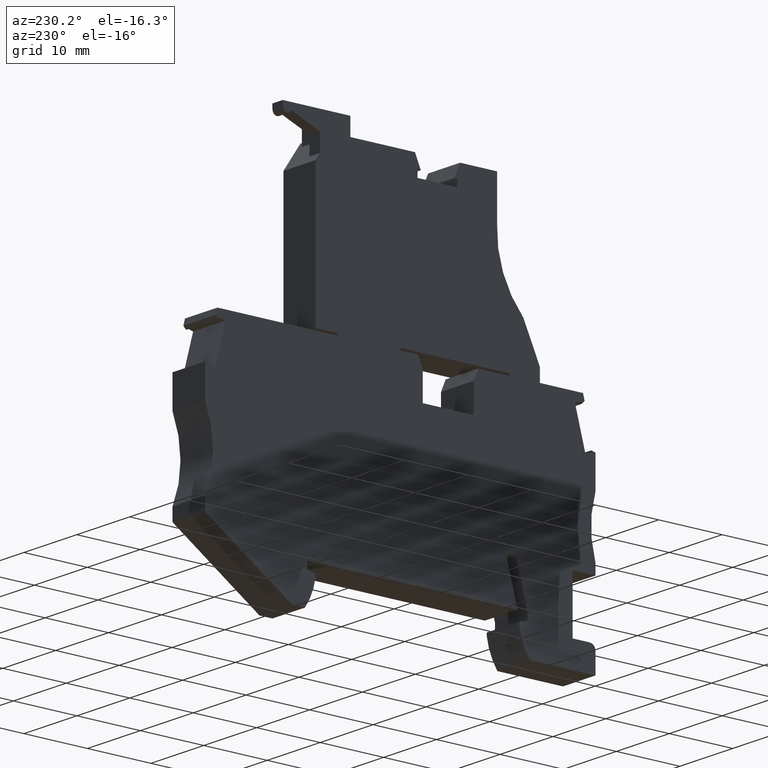
[diagram: clean part render]
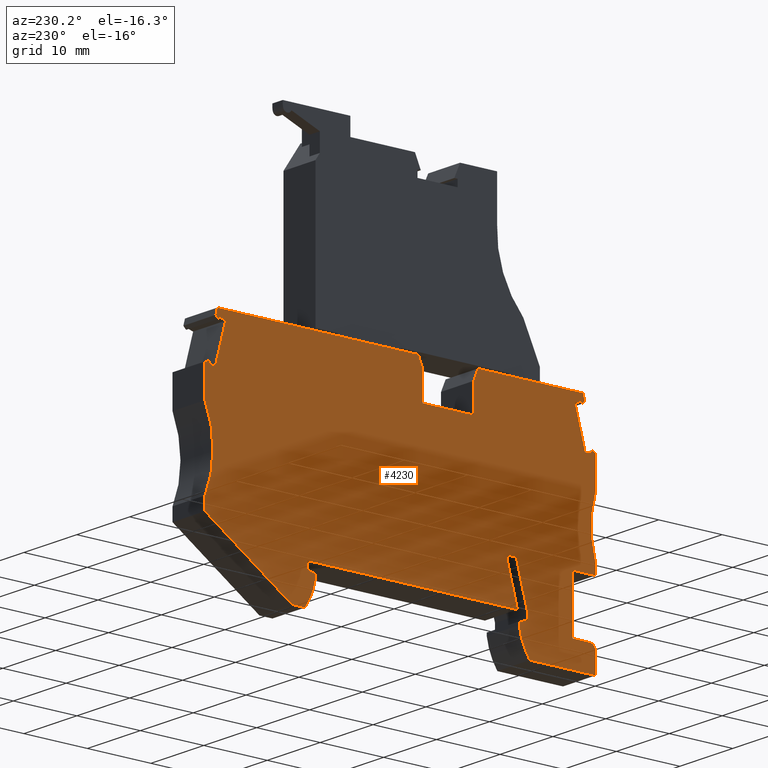
[diagram: same view with one face highlighted and labeled with its STEP entity id]
A machine part, auxiliary view. The second image highlights one B-rep face of the part: STEP entity #4230.
In plain terms, the highlighted planar face has unit normal (-1, 0, 0).
Its self-contained STEP definition (entity closure, byte-faithful):
#10=CARTESIAN_POINT('',(-37.377555528402,21.5329479692875,
-5.1499999965275));
#20=DIRECTION('',(0.,0.,-1.));
#30=DIRECTION('',(-1.,0.,0.));
#40=AXIS2_PLACEMENT_3D('',#10,#20,#30);
#50=PLANE('',#40);
#60=CARTESIAN_POINT('',(18.3854064788973,-6.67785114815199,
-5.1499999965275));
#70=DIRECTION('',(0.258819045102385,-0.965925826289105,0.));
#80=VECTOR('',#70,1.);
#90=LINE('',#60,#80);
#100=CARTESIAN_POINT('',(11.7950480447559,17.9177013681674,
-5.1499999965275));
#110=VERTEX_POINT('',#100);
#120=CARTESIAN_POINT('',(11.8654484799115,17.6549633672917,
-5.1499999965275));
#130=VERTEX_POINT('',#120);
#140=EDGE_CURVE('',#110,#130,#90,.T.);
#150=ORIENTED_EDGE('',*,*,#140,.F.);
#160=CARTESIAN_POINT('',(-17.2402011528858,-11.450686265427,
-5.1499999965275));
#170=DIRECTION('',(0.707106781187503,0.707106781185593,0.));
#180=VECTOR('',#170,1.);
#190=LINE('',#160,#180);
#200=CARTESIAN_POINT('',(12.2977656682969,18.087280555676,
-5.1499999965275));
#210=VERTEX_POINT('',#200);
#220=EDGE_CURVE('',#130,#210,#190,.T.);
#230=ORIENTED_EDGE('',*,*,#220,.F.);
#240=CARTESIAN_POINT('',(18.9335627087992,-6.67785114815208,
-5.1499999965275));
#250=DIRECTION('',(0.258819045102926,-0.96592582628896,0.));
#260=VECTOR('',#250,1.);
#270=LINE('',#240,#260);
#280=CARTESIAN_POINT('',(12.0398057706521,19.0500000000001,
-5.1499999965275));
#290=VERTEX_POINT('',#280);
#300=EDGE_CURVE('',#290,#210,#270,.T.);
#310=ORIENTED_EDGE('',*,*,#300,.T.);
#320=CARTESIAN_POINT('',(-17.2402011528858,19.0500000000001,
-5.1499999965275));
#330=DIRECTION('',(-1.,0.,0.));
#340=VECTOR('',#330,1.);
#350=LINE('',#320,#340);
#360=CARTESIAN_POINT('',(-19.5815002806931,19.0500000000001,
-5.1499999965275));
#370=VERTEX_POINT('',#360);
#380=EDGE_CURVE('',#290,#370,#350,.T.);
#390=ORIENTED_EDGE('',*,*,#380,.F.);
#400=CARTESIAN_POINT('',(-30.4552966502725,-6.67785114815208,
-5.1499999965275));
#410=DIRECTION('',(0.38930399709805,0.92110933001652,0.));
#420=VECTOR('',#410,1.);
#430=LINE('',#400,#420);
#440=CARTESIAN_POINT('',(-20.2999999999999,17.3499999999974,
-5.1499999965275));
#450=VERTEX_POINT('',#440);
#460=EDGE_CURVE('',#450,#370,#430,.T.);
#470=ORIENTED_EDGE('',*,*,#460,.T.);
#480=CARTESIAN_POINT('',(-20.2999999999998,-6.67785114815208,
-5.1499999965275));
#490=DIRECTION('',(-5.53723733531797E-15,1.,0.));
#500=VECTOR('',#490,1.);
#510=LINE('',#480,#500);
#520=CARTESIAN_POINT('',(-20.2999999999999,13.0499999999976,
-5.1499999965275));
#530=VERTEX_POINT('',#520);
#540=EDGE_CURVE('',#530,#450,#510,.T.);
#550=ORIENTED_EDGE('',*,*,#540,.T.);
#560=CARTESIAN_POINT('',(-17.2402011528858,13.0499999999972,
-5.1499999965275));
#570=DIRECTION('',(1.,-1.15518705712248E-13,0.));
#580=VECTOR('',#570,1.);
#590=LINE('',#560,#580);
#600=CARTESIAN_POINT('',(-28.2999999999997,13.0499999999985,
-5.1499999965275));
#610=VERTEX_POINT('',#600);
#620=EDGE_CURVE('',#610,#530,#590,.T.);
#630=ORIENTED_EDGE('',*,*,#620,.T.);
#640=CARTESIAN_POINT('',(-28.2999999999996,-6.67785114815208,
-5.1499999965275));
#650=DIRECTION('',(2.76167977375508E-15,-1.,0.));
#660=VECTOR('',#650,1.);
#670=LINE('',#640,#660);
#680=CARTESIAN_POINT('',(-28.2999999999997,17.3500000000018,
-5.1499999965275));
#690=VERTEX_POINT('',#680);
#700=EDGE_CURVE('',#690,#610,#670,.T.);
#710=ORIENTED_EDGE('',*,*,#700,.T.);
#720=CARTESIAN_POINT('',(-18.1447033497253,-6.67785114815208,
-5.1499999965275));
#730=DIRECTION('',(0.38930399709805,-0.92110933001652,0.));
#740=VECTOR('',#730,1.);
#750=LINE('',#720,#740);
#760=CARTESIAN_POINT('',(-29.0184997193085,19.0500000000092,
-5.1499999965275));
#770=VERTEX_POINT('',#760);
#780=EDGE_CURVE('',#770,#690,#750,.T.);
#790=ORIENTED_EDGE('',*,*,#780,.T.);
#800=CARTESIAN_POINT('',(-17.2402011528858,19.0500000000001,
-5.1499999965275));
#810=DIRECTION('',(-1.,0.,0.));
#820=VECTOR('',#810,1.);
#830=LINE('',#800,#820);
#840=CARTESIAN_POINT('',(-45.539805770653,19.0499999999983,
-5.1499999965275));
#850=VERTEX_POINT('',#840);
#860=EDGE_CURVE('',#770,#850,#830,.T.);
#870=ORIENTED_EDGE('',*,*,#860,.F.);
#880=CARTESIAN_POINT('',(-52.4335627088001,-6.67785114815208,
-5.1499999965275));
#890=DIRECTION('',(0.258819045102926,0.96592582628896,0.));
#900=VECTOR('',#890,1.);
#910=LINE('',#880,#900);
#920=CARTESIAN_POINT('',(-45.7977656682978,18.087280555676,
-5.1499999965275));
#930=VERTEX_POINT('',#920);
#940=EDGE_CURVE('',#930,#850,#910,.T.);
#950=ORIENTED_EDGE('',*,*,#940,.T.);
#960=CARTESIAN_POINT('',(-17.2402011528858,-10.4702839596589,
-5.1499999965275));
#970=DIRECTION('',(-0.707106781187503,0.707106781185593,0.));
#980=VECTOR('',#970,1.);
#990=LINE('',#960,#980);
#1000=CARTESIAN_POINT('',(-45.3654484799123,17.6549633672917,
-5.1499999965275));
#1010=VERTEX_POINT('',#1000);
#1020=EDGE_CURVE('',#1010,#930,#990,.T.);
#1030=ORIENTED_EDGE('',*,*,#1020,.T.);
#1040=CARTESIAN_POINT('',(-51.8854064788985,-6.67785114815199,
-5.1499999965275));
#1050=DIRECTION('',(-0.2588190451024,-0.965925826289101,0.));
#1060=VECTOR('',#1050,1.);
#1070=LINE('',#1040,#1060);
#1080=CARTESIAN_POINT('',(-45.2950480447567,17.9177013681674,
-5.1499999965275));
#1090=VERTEX_POINT('',#1080);
#1100=EDGE_CURVE('',#1090,#1010,#1070,.T.);
#1110=ORIENTED_EDGE('',*,*,#1100,.T.);
#1120=CARTESIAN_POINT('',(-17.2402011528858,10.4004277997157,
-5.1499999965275));
#1130=DIRECTION('',(-0.965925826289102,0.258819045102394,0.));
#1140=VECTOR('',#1130,1.);
#1150=LINE('',#1120,#1140);
#1160=CARTESIAN_POINT('',(-44.2610034477991,17.640629953475,
-5.1499999965275));
#1170=VERTEX_POINT('',#1160);
#1180=EDGE_CURVE('',#1170,#1090,#1150,.T.);
#1190=ORIENTED_EDGE('',*,*,#1180,.T.);
#1200=CARTESIAN_POINT('',(-50.7771208201366,-6.67785114815208,
-5.1499999965275));
#1210=DIRECTION('',(0.258819045102705,0.965925826289019,0.));
#1220=VECTOR('',#1210,1.);
#1230=LINE('',#1200,#1220);
#1240=CARTESIAN_POINT('',(-45.8980339080737,11.5311491021972,
-5.1499999965275));
#1250=VERTEX_POINT('',#1240);
#1260=EDGE_CURVE('',#1250,#1170,#1230,.T.);
#1270=ORIENTED_EDGE('',*,*,#1260,.T.);
#1280=CARTESIAN_POINT('',(-17.2402011528858,3.85230595863084,
-5.1499999965275));
#1290=DIRECTION('',(0.965925826289173,-0.25881904510213,0.));
#1300=VECTOR('',#1290,1.);
#1310=LINE('',#1280,#1300);
#1320=CARTESIAN_POINT('',(-46.9320785050304,11.8082205168891,
-5.1499999965275));
#1330=VERTEX_POINT('',#1320);
#1340=EDGE_CURVE('',#1330,#1250,#1310,.T.);
#1350=ORIENTED_EDGE('',*,*,#1340,.T.);
#1360=CARTESIAN_POINT('',(-51.8854064790759,-6.67785114815199,
-5.1499999965275));
#1370=DIRECTION('',(-0.258819045110997,-0.965925826286797,0.));
#1380=VECTOR('',#1370,1.);
#1390=LINE('',#1360,#1380);
#1400=CARTESIAN_POINT('',(-46.8616780698729,12.0709585177625,
-5.1499999965275));
#1410=VERTEX_POINT('',#1400);
#1420=EDGE_CURVE('',#1410,#1330,#1390,.T.);
#1430=ORIENTED_EDGE('',*,*,#1420,.T.);
#1440=CARTESIAN_POINT('',(-17.2402011528858,20.008009336057,
-5.1499999965275));
#1450=DIRECTION('',(0.965925826290939,0.25881904509554,0.));
#1460=VECTOR('',#1450,1.);
#1470=LINE('',#1440,#1460);
#1480=CARTESIAN_POINT('',(-47.4999999999999,11.8999206720789,
-5.1499999965275));
#1490=VERTEX_POINT('',#1480);
#1500=EDGE_CURVE('',#1490,#1410,#1470,.T.);
#1510=ORIENTED_EDGE('',*,*,#1500,.T.);
#1520=CARTESIAN_POINT('',(-47.4999999999999,-6.67785114815208,
-5.1499999965275));
#1530=DIRECTION('',(0.,1.,0.));
#1540=VECTOR('',#1530,1.);
#1550=LINE('',#1520,#1540);
#1560=CARTESIAN_POINT('',(-47.4999999999999,6.9999999999986,
-5.1499999965275));
#1570=VERTEX_POINT('',#1560);
#1580=EDGE_CURVE('',#1570,#1490,#1550,.T.);
#1590=ORIENTED_EDGE('',*,*,#1580,.T.);
#1600=CARTESIAN_POINT('',(-61.8090880212543,2.49999999999859,
-5.1499999965275));
#1610=DIRECTION('',(0.,0.,1.));
#1620=DIRECTION('',(1.,0.,0.));
#1630=AXIS2_PLACEMENT_3D('',#1600,#1610,#1620);
#1640=CIRCLE('',#1630,15.0000000000002);
#1650=CARTESIAN_POINT('',(-47.4999999999999,-2.00000000000136,
-5.1499999965275));
#1660=VERTEX_POINT('',#1650);
#1670=EDGE_CURVE('',#1660,#1570,#1640,.T.);
#1680=ORIENTED_EDGE('',*,*,#1670,.T.);
#1690=CARTESIAN_POINT('',(-47.4999999999999,-6.67785114815208,
-5.1499999965275));
#1700=DIRECTION('',(0.,1.,0.));
#1710=VECTOR('',#1700,1.);
#1720=LINE('',#1690,#1710);
#1730=CARTESIAN_POINT('',(-47.4999999999999,-3.59999999999924,
-5.1499999965275));
#1740=VERTEX_POINT('',#1730);
#1750=EDGE_CURVE('',#1740,#1660,#1720,.T.);
#1760=ORIENTED_EDGE('',*,*,#1750,.T.);
#1770=CARTESIAN_POINT('',(-17.2402011528858,-3.59999999999924,
-5.1499999965275));
#1780=DIRECTION('',(-1.,0.,0.));
#1790=VECTOR('',#1780,1.);
#1800=LINE('',#1770,#1790);
#1810=CARTESIAN_POINT('',(-43.9,-3.59999999999924,-5.1499999965275));
#1820=VERTEX_POINT('',#1810);
#1830=EDGE_CURVE('',#1820,#1740,#1800,.T.);
#1840=ORIENTED_EDGE('',*,*,#1830,.T.);
#1850=CARTESIAN_POINT('',(-43.9,-6.67785114815208,-5.1499999965275));
#1860=DIRECTION('',(0.,-1.,0.));
#1870=VECTOR('',#1860,1.);
#1880=LINE('',#1850,#1870);
#1890=CARTESIAN_POINT('',(-43.9,-12.2000000000005,-5.1499999965275));
#1900=VERTEX_POINT('',#1890);
#1910=EDGE_CURVE('',#1820,#1900,#1880,.T.);
#1920=ORIENTED_EDGE('',*,*,#1910,.F.);
#1930=CARTESIAN_POINT('',(-17.2402011528858,-12.2000000000005,
-5.1499999965275));
#1940=DIRECTION('',(-1.,0.,0.));
#1950=VECTOR('',#1940,1.);
#1960=LINE('',#1930,#1950);
#1970=CARTESIAN_POINT('',(-46.6,-12.2000000000005,-5.1499999965275));
#1980=VERTEX_POINT('',#1970);
#1990=EDGE_CURVE('',#1900,#1980,#1960,.T.);
#2000=ORIENTED_EDGE('',*,*,#1990,.F.);
#2010=CARTESIAN_POINT('',(-46.6,-13.1000000000005,-5.1499999965275));
#2020=DIRECTION('',(0.,0.,1.));
#2030=DIRECTION('',(1.,0.,0.));
#2040=AXIS2_PLACEMENT_3D('',#2010,#2020,#2030);
#2050=CIRCLE('',#2040,0.9);
#2060=CARTESIAN_POINT('',(-47.5,-13.1000000000005,-5.1499999965275));
#2070=VERTEX_POINT('',#2060);
#2080=EDGE_CURVE('',#1980,#2070,#2050,.T.);
#2090=ORIENTED_EDGE('',*,*,#2080,.F.);
#2100=CARTESIAN_POINT('',(-47.5,-6.67785114815208,-5.1499999965275));
#2110=DIRECTION('',(0.,-1.,0.));
#2120=VECTOR('',#2110,1.);
#2130=LINE('',#2100,#2120);
#2140=CARTESIAN_POINT('',(-47.5,-16.2000000000003,-5.1499999965275));
#2150=VERTEX_POINT('',#2140);
#2160=EDGE_CURVE('',#2070,#2150,#2130,.T.);
#2170=ORIENTED_EDGE('',*,*,#2160,.F.);
#2180=CARTESIAN_POINT('',(-17.2402011528858,-16.1999999999992,
-5.1499999965275));
#2190=DIRECTION('',(1.,3.8219427622721E-14,0.));
#2200=VECTOR('',#2190,1.);
#2210=LINE('',#2180,#2200);
#2220=CARTESIAN_POINT('',(-37.1589436531324,-16.1999999999999,
-5.1499999965275));
#2230=VERTEX_POINT('',#2220);
#2240=EDGE_CURVE('',#2150,#2230,#2210,.T.);
#2250=ORIENTED_EDGE('',*,*,#2240,.F.);
#2260=CARTESIAN_POINT('',(-44.8939726793762,-10.6846282117025,
-5.1499999965275));
#2270=DIRECTION('',(-2.18952885050753E-47,0.,1.));
#2280=DIRECTION('',(1.,0.,2.18952885050753E-47));
#2290=AXIS2_PLACEMENT_3D('',#2260,#2270,#2280);
#2300=CIRCLE('',#2290,9.499999999999);
#2310=CARTESIAN_POINT('',(-35.4999999999998,-12.100000000001,
-5.1499999965275));
#2320=VERTEX_POINT('',#2310);
#2330=EDGE_CURVE('',#2230,#2320,#2300,.T.);
#2340=ORIENTED_EDGE('',*,*,#2330,.F.);
#2350=CARTESIAN_POINT('',(-35.5000000000001,-6.67785114815208,
-5.1499999965275));
#2360=DIRECTION('',(0.,1.,0.));
#2370=VECTOR('',#2360,1.);
#2380=LINE('',#2350,#2370);
#2390=CARTESIAN_POINT('',(-35.5000000000001,-11.6483339501604,
-5.1499999965275));
#2400=VERTEX_POINT('',#2390);
#2410=EDGE_CURVE('',#2320,#2400,#2380,.T.);
#2420=ORIENTED_EDGE('',*,*,#2410,.F.);
#2430=CARTESIAN_POINT('',(-17.2402011528858,-16.5410323052016,
-5.1499999965275));
#2440=DIRECTION('',(-0.96592582628904,0.258819045102626,0.));
#2450=VECTOR('',#2440,1.);
#2460=LINE('',#2430,#2450);
#2470=CARTESIAN_POINT('',(-36.7999999999994,-11.3,-5.1499999965275));
#2480=VERTEX_POINT('',#2470);
#2490=EDGE_CURVE('',#2400,#2480,#2460,.T.);
#2500=ORIENTED_EDGE('',*,*,#2490,.F.);
#2510=CARTESIAN_POINT('',(-36.7999999999994,-6.67785114815208,
-5.1499999965275));
#2520=DIRECTION('',(0.,1.,0.));
#2530=VECTOR('',#2520,1.);
#2540=LINE('',#2510,#2530);
#2550=CARTESIAN_POINT('',(-36.7999999999994,-10.1999999999807,
-5.1499999965275));
#2560=VERTEX_POINT('',#2550);
#2570=EDGE_CURVE('',#2480,#2560,#2540,.T.);
#2580=ORIENTED_EDGE('',*,*,#2570,.F.);
#2590=CARTESIAN_POINT('',(-35.8562430595272,-6.67785114815208,
-5.1499999965275));
#2600=DIRECTION('',(-0.258819045103168,-0.965925826288895,0.));
#2610=VECTOR('',#2600,1.);
#2620=LINE('',#2590,#2610);
#2630=CARTESIAN_POINT('',(-35.1308347491095,-3.97059047744793,
-5.1499999965275));
#2640=VERTEX_POINT('',#2630);
#2650=EDGE_CURVE('',#2640,#2560,#2620,.T.);
#2660=ORIENTED_EDGE('',*,*,#2650,.T.);
#2670=CARTESIAN_POINT('',(-34.647871835965,-4.09999999999952,
-5.1499999965275));
#2680=DIRECTION('',(0.,0.,-1.));
#2690=DIRECTION('',(-1.,0.,0.));
#2700=AXIS2_PLACEMENT_3D('',#2670,#2680,#2690);
#2710=CIRCLE('',#2700,0.5);
#2720=CARTESIAN_POINT('',(-34.647871835965,-3.59999999999952,
-5.1499999965275));
#2730=VERTEX_POINT('',#2720);
#2740=EDGE_CURVE('',#2640,#2730,#2710,.T.);
#2750=ORIENTED_EDGE('',*,*,#2740,.F.);
#2760=CARTESIAN_POINT('',(-17.2402011528858,-3.59999999999952,
-5.1499999965275));
#2770=DIRECTION('',(-1.,0.,0.));
#2780=VECTOR('',#2770,1.);
#2790=LINE('',#2760,#2780);
#2800=CARTESIAN_POINT('',(-34.0831480163721,-3.59999999999952,
-5.1499999965275));
#2810=VERTEX_POINT('',#2800);
#2820=EDGE_CURVE('',#2810,#2730,#2790,.T.);
#2830=ORIENTED_EDGE('',*,*,#2820,.T.);
#2840=CARTESIAN_POINT('',(-34.0831480163721,-4.09999999999952,
-5.1499999965275));
#2850=DIRECTION('',(0.,0.,-1.));
#2860=DIRECTION('',(-1.,0.,0.));
#2870=AXIS2_PLACEMENT_3D('',#2840,#2850,#2860);
#2880=CIRCLE('',#2870,0.5);
#2890=CARTESIAN_POINT('',(-33.6001851032276,-4.22940952255101,
-5.1499999965275));
#2900=VERTEX_POINT('',#2890);
#2910=EDGE_CURVE('',#2810,#2900,#2880,.T.);
#2920=ORIENTED_EDGE('',*,*,#2910,.F.);
#2930=CARTESIAN_POINT('',(-34.2562430595234,-6.67785114815208,
-5.1499999965275));
#2940=DIRECTION('',(-0.258819045102995,-0.965925826288942,0.));
#2950=VECTOR('',#2940,1.);
#2960=LINE('',#2930,#2950);
#2970=CARTESIAN_POINT('',(-35.2000000000002,-10.2000000000001,
-5.1499999965275));
#2980=VERTEX_POINT('',#2970);
#2990=EDGE_CURVE('',#2900,#2980,#2960,.T.);
#3000=ORIENTED_EDGE('',*,*,#2990,.F.);
#3010=CARTESIAN_POINT('',(-17.2402011528858,-10.2000000000001,
-5.1499999965275));
#3020=DIRECTION('',(1.,0.,0.));
#3030=VECTOR('',#3020,1.);
#3040=LINE('',#3010,#3030);
#3050=CARTESIAN_POINT('',(-2.0999999999997,-10.2000000000001,
-5.1499999965275));
#3060=VERTEX_POINT('',#3050);
#3070=EDGE_CURVE('',#2980,#3060,#3040,.T.);
#3080=ORIENTED_EDGE('',*,*,#3070,.F.);
#3090=CARTESIAN_POINT('',(-2.0999999999997,-6.67785114815208,
-5.1499999965275));
#3100=DIRECTION('',(0.,-1.,0.));
#3110=VECTOR('',#3100,1.);
#3120=LINE('',#3090,#3110);
#3130=CARTESIAN_POINT('',(-2.09999999999969,-11.3,-5.1499999965275));
#3140=VERTEX_POINT('',#3130);
#3150=EDGE_CURVE('',#3060,#3140,#3120,.T.);
#3160=ORIENTED_EDGE('',*,*,#3150,.F.);
#3170=CARTESIAN_POINT('',(-17.2402011528858,-15.3568046721595,
-5.1499999965275));
#3180=DIRECTION('',(-0.965925826289086,-0.258819045102457,0.));
#3190=VECTOR('',#3180,1.);
#3200=LINE('',#3170,#3190);
#3210=CARTESIAN_POINT('',(-3.39999999999986,-11.6483339501604,
-5.1499999965275));
#3220=VERTEX_POINT('',#3210);
#3230=EDGE_CURVE('',#3140,#3220,#3200,.T.);
#3240=ORIENTED_EDGE('',*,*,#3230,.F.);
#3250=CARTESIAN_POINT('',(-3.39999999999644,-6.67785114815208,
-5.1499999965275));
#3260=DIRECTION('',(-6.9022565440946E-13,-1.,0.));
#3270=VECTOR('',#3260,1.);
#3280=LINE('',#3250,#3270);
#3290=CARTESIAN_POINT('',(-3.40000000000019,-12.1000000000012,
-5.1499999965275));
#3300=VERTEX_POINT('',#3290);
#3310=EDGE_CURVE('',#3220,#3300,#3280,.T.);
#3320=ORIENTED_EDGE('',*,*,#3310,.F.);
#3330=CARTESIAN_POINT('',(5.99397267937623,-10.684628211703,
-5.1499999965275));
#3340=DIRECTION('',(0.,0.,-1.));
#3350=DIRECTION('',(-1.,1.84889274661175E-32,0.));
#3360=AXIS2_PLACEMENT_3D('',#3330,#3340,#3350);
#3370=CIRCLE('',#3360,9.499999999999);
#3380=CARTESIAN_POINT('',(-1.74105634686779,-16.2000000000001,
-5.1499999965275));
#3390=VERTEX_POINT('',#3380);
#3400=EDGE_CURVE('',#3390,#3300,#3370,.T.);
#3410=ORIENTED_EDGE('',*,*,#3400,.T.);
#3420=CARTESIAN_POINT('',(-17.2402011528858,-16.1999999999992,
-5.1499999965275));
#3430=DIRECTION('',(-1.,5.79120085220097E-14,0.));
#3440=VECTOR('',#3430,1.);
#3450=LINE('',#3420,#3440);
#3460=CARTESIAN_POINT('',(0.30957634185274,-16.2000000000002,
-5.1499999965275));
#3470=VERTEX_POINT('',#3460);
#3480=EDGE_CURVE('',#3470,#3390,#3450,.T.);
#3490=ORIENTED_EDGE('',*,*,#3480,.T.);
#3500=CARTESIAN_POINT('',(-17.2402011528858,-27.993495729806,
-5.1499999965275));
#3510=DIRECTION('',(0.830000578902483,0.557762529237617,0.));
#3520=VECTOR('',#3510,1.);
#3530=LINE('',#3500,#3520);
#3540=CARTESIAN_POINT('',(14.0000000000004,-7.0000000000001,
-5.1499999965275));
#3550=VERTEX_POINT('',#3540);
#3560=EDGE_CURVE('',#3470,#3550,#3530,.T.);
#3570=ORIENTED_EDGE('',*,*,#3560,.F.);
#3580=CARTESIAN_POINT('',(14.0000000000004,-6.67785114815208,
-5.1499999965275));
#3590=DIRECTION('',(-2.22577976528388E-15,1.,0.));
#3600=VECTOR('',#3590,1.);
#3610=LINE('',#3580,#3600);
#3620=CARTESIAN_POINT('',(14.0000000000004,-5.00000000000137,
-5.1499999965275));
#3630=VERTEX_POINT('',#3620);
#3640=EDGE_CURVE('',#3550,#3630,#3610,.T.);
#3650=ORIENTED_EDGE('',*,*,#3640,.F.);
#3660=CARTESIAN_POINT('',(27.747727084868,0.999999999998607,
-5.1499999965275));
#3670=DIRECTION('',(0.,0.,1.));
#3680=DIRECTION('',(1.,0.,0.));
#3690=AXIS2_PLACEMENT_3D('',#3660,#3670,#3680);
#3700=CIRCLE('',#3690,15.);
#3710=CARTESIAN_POINT('',(13.9999999999991,6.99999999999569,
-5.1499999965275));
#3720=VERTEX_POINT('',#3710);
#3730=EDGE_CURVE('',#3720,#3630,#3700,.T.);
#3740=ORIENTED_EDGE('',*,*,#3730,.T.);
#3750=CARTESIAN_POINT('',(13.9999999999991,-6.67785114815208,
-5.1499999965275));
#3760=DIRECTION('',(0.,-1.,0.));
#3770=VECTOR('',#3760,1.);
#3780=LINE('',#3750,#3770);
#3790=CARTESIAN_POINT('',(13.9999999999991,11.8999206720793,
-5.1499999965275));
#3800=VERTEX_POINT('',#3790);
#3810=EDGE_CURVE('',#3800,#3720,#3780,.T.);
#3820=ORIENTED_EDGE('',*,*,#3810,.T.);
#3830=CARTESIAN_POINT('',(-17.2402011528858,20.2707073421386,
-5.1499999965275));
#3840=DIRECTION('',(0.965925826290939,-0.25881904509554,0.));
#3850=VECTOR('',#3840,1.);
#3860=LINE('',#3830,#3850);
#3870=CARTESIAN_POINT('',(13.3616780698738,12.0709585177624,
-5.1499999965275));
#3880=VERTEX_POINT('',#3870);
#3890=EDGE_CURVE('',#3880,#3800,#3860,.T.);
#3900=ORIENTED_EDGE('',*,*,#3890,.T.);
#3910=CARTESIAN_POINT('',(18.3854064789574,-6.67785114815199,
-5.1499999965275));
#3920=DIRECTION('',(-0.258819045105261,0.965925826288334,0.));
#3930=VECTOR('',#3920,1.);
#3940=LINE('',#3910,#3930);
#3950=CARTESIAN_POINT('',(13.4320785050296,11.8082205168892,
-5.1499999965275));
#3960=VERTEX_POINT('',#3950);
#3970=EDGE_CURVE('',#3960,#3880,#3940,.T.);
#3980=ORIENTED_EDGE('',*,*,#3970,.T.);
#3990=CARTESIAN_POINT('',(-17.2402011528858,3.58960795254256,
-5.1499999965275));
#4000=DIRECTION('',(0.965925826289173,0.25881904510213,0.));
#4010=VECTOR('',#4000,1.);
#4020=LINE('',#3990,#4010);
#4030=CARTESIAN_POINT('',(12.3980339080727,11.5311491021973,
-5.1499999965275));
#4040=VERTEX_POINT('',#4030);
#4050=EDGE_CURVE('',#4040,#3960,#4020,.T.);
#4060=ORIENTED_EDGE('',*,*,#4050,.T.);
#4070=CARTESIAN_POINT('',(17.2771208201357,-6.67785114815208,
-5.1499999965275));
#4080=DIRECTION('',(0.258819045102705,-0.965925826289019,0.));
#4090=VECTOR('',#4080,1.);
#4100=LINE('',#4070,#4090);
#4110=CARTESIAN_POINT('',(10.7610034477983,17.640629953475,
-5.1499999965275));
#4120=VERTEX_POINT('',#4110);
#4130=EDGE_CURVE('',#4120,#4040,#4100,.T.);
#4140=ORIENTED_EDGE('',*,*,#4130,.T.);
#4150=CARTESIAN_POINT('',(-17.2402011528858,10.137729793627,
-5.1499999965275));
#4160=DIRECTION('',(-0.965925826289102,-0.258819045102394,0.));
#4170=VECTOR('',#4160,1.);
#4180=LINE('',#4150,#4170);
#4190=EDGE_CURVE('',#110,#4120,#4180,.T.);
#4200=ORIENTED_EDGE('',*,*,#4190,.T.);
#4210=EDGE_LOOP('',(#4200,#4140,#4060,#3980,#3900,#3820,#3740,#3650,
#3570,#3490,#3410,#3320,#3240,#3160,#3080,#3000,#2920,#2830,#2750,#2660,
#2580,#2500,#2420,#2340,#2250,#2170,#2090,#2000,#1920,#1840,#1760,#1680,
#1590,#1510,#1430,#1350,#1270,#1190,#1110,#1030,#950,#870,#790,#710,#630
,#550,#470,#390,#310,#230,#150));
#4220=FACE_OUTER_BOUND('',#4210,.T.);
#4230=ADVANCED_FACE('',(#4220),#50,.T.);